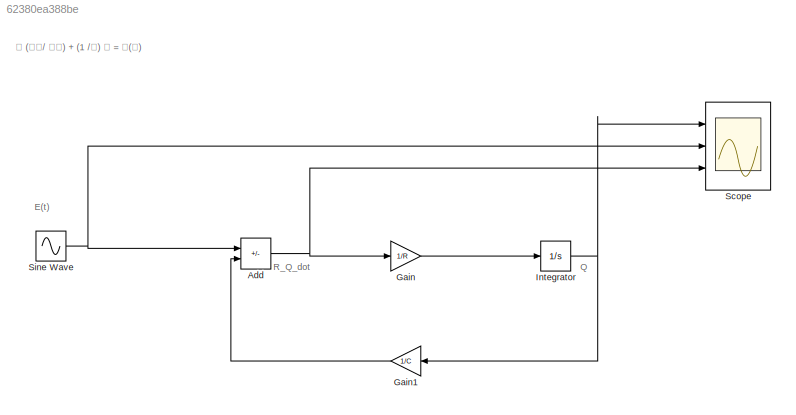
MODEL slx_62380ea388be
KIND model
CONFIG AbsTol = auto
CONFIG EnableMultiTasking = off
CONFIG FixedStep = auto
CONFIG MaxStep = 0.001
CONFIG MinStep = auto
CONFIG RelTol = 1e-3
CONFIG SampleTimeConstraint = Unconstrained
CONFIG SolverName = VariableStepAuto
CONFIG StartTime = 0.0
CONFIG StopTime = 10.0
BLOCK [Sum] Add
  IconShape = rectangular
  Inputs = +-
  Ports = [2, 1]
BLOCK [Gain] Gain
  Gain = 1/R
BLOCK [Gain] Gain1
  Gain = 1/C
BLOCK [Integrator] Integrator
  InitialCondition = 5
  Ports = [1, 1]
BLOCK [Scope] Scope
  Floating = off
  NumInputPorts = 3
  Ports = [3]
  ScopeSpecificationString = Simulink.scopes.TimeScopeBlockCfg('CurrentConfiguration', extmgr.ConfigurationSet(extmgr.Configuration('Core','General UI',true),extmgr.Configuration('Core','Source UI',true),extmgr.Configuration('Sources','WiredSimulink',true),extmgr.Configuration('Visuals','Time Domain',true,'SerializedDisplays',{struct('MinYLimReal','2.22412','MaxYLimReal','4.21287','YLabelReal','','MinYLimMag','2.22412','MaxYL...<+2808ch>
BLOCK [Sin] Sine Wave
  Amplitude = 10
  Frequency = 2*pi*500
  Ports = [0, 1]
  SampleTime = 0
ANNOTATION (root): 𝑅 (𝑑𝑄/ 𝑑𝑡) + (1 /𝐶) 𝑄 = 𝐸(𝑡)
ANNOTATION (root): E(t)
ANNOTATION (root): Q
ANNOTATION (root): R_Q_dot
NET Add:1 -> Gain:1, Scope:3
LINE Gain1:1 -> Add:2
LINE Gain:1 -> Integrator:1
NET Integrator:1 -> Gain1:1, Scope:1
NET Sine Wave:1 -> Add:1, Scope:2
note: NET lines group one-source signal fan-out (src -> all destinations, sorted); 1:1 wires keep LINE
